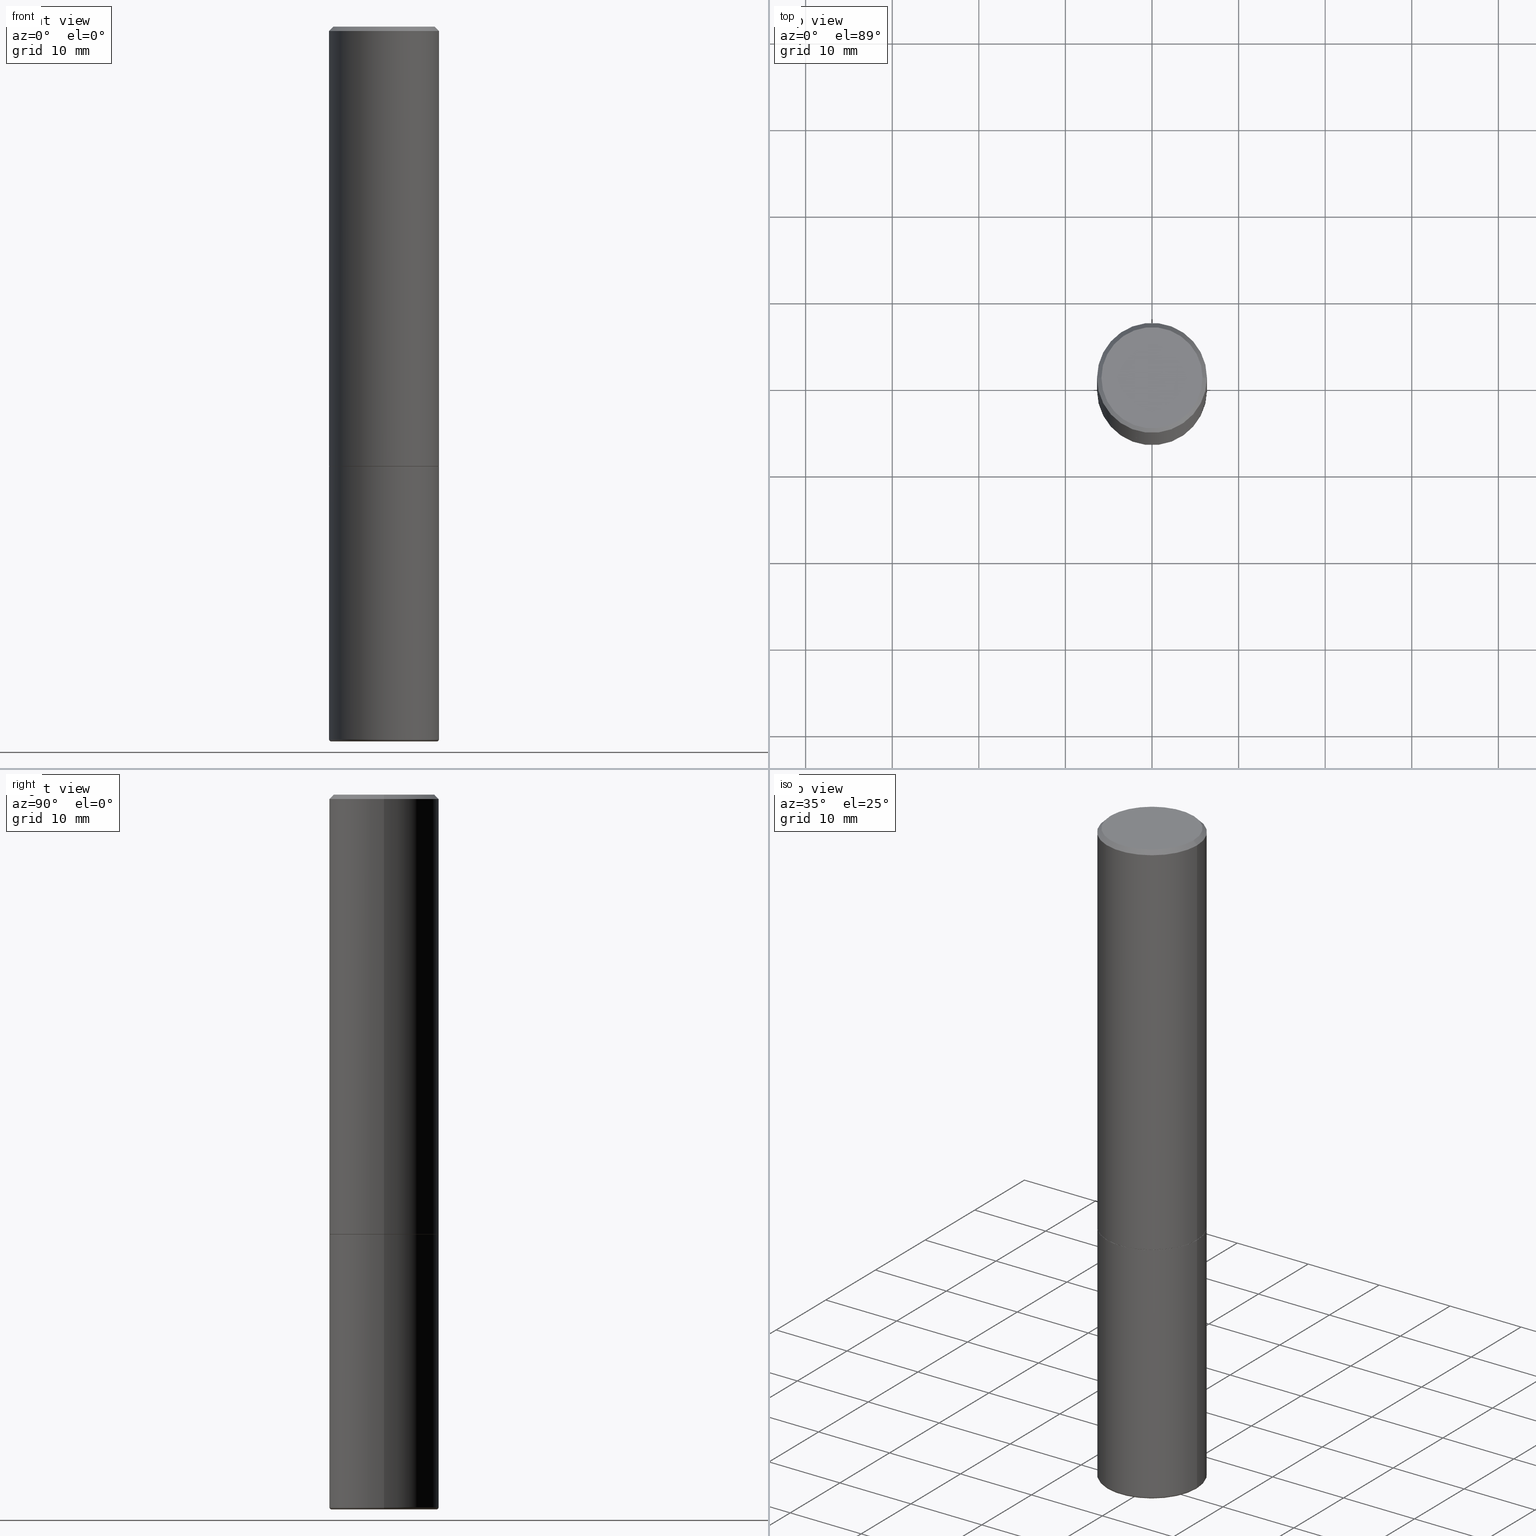
[diagram: canonical four-view strip — front | top / right | iso, engineering-drawing reading convention]
A machine part, canonical four-view strip (front | top / right | iso — engineering-drawing reading convention). The complete STEP part file that produces these views, byte-faithful:
ISO-10303-21;
HEADER;
FILE_DESCRIPTION (( 'STEP AP203' ),
    '1' );
FILE_NAME ('38840.STEP',
    '2024-03-03T16:16:01',
    ( '' ),
    ( '' ),
    'SwSTEP 2.0',
    'SolidWorks 2023',
    '' );
FILE_SCHEMA (( 'CONFIG_CONTROL_DESIGN' ));
ENDSEC;

DATA;
#1 = DIRECTION ( 'NONE',  ( -2.445468806185136597E-29, 3.491481338843145583E-15, 1.000000000000000000 ) ) ;
#2 = VECTOR ( 'NONE', #151, 39.37007874015748143 ) ;
#3 = CIRCLE ( 'NONE', #40, 0.009999999999999790307 ) ;
#4 = DIRECTION ( 'NONE',  ( -2.445468806185136597E-29, 3.491481338843145583E-15, 1.000000000000000000 ) ) ;
#5 = CARTESIAN_POINT ( 'NONE',  ( 7.923318932039842394E-29, -1.131239953785179120E-14, -3.239999999999999769 ) ) ;
#6 = AXIS2_PLACEMENT_3D ( 'NONE', #304, #208, #382 ) ;
#7 = CARTESIAN_POINT ( 'NONE',  ( -0.2500000000000000000, 1.776356839400250465E-15, -1.229733772563726445E-29 ) ) ;
#8 = ADVANCED_FACE ( 'NONE', ( #96 ), #12, .T. ) ;
#9 = PERSON ( 'UNSPECIFIED', 'UNSPECIFIED', 'UNSPECIFIED', ('UNSPECIFIED'), ('UNSPECIFIED'), ('UNSPECIFIED') ) ;
#10 = DIRECTION ( 'NONE',  ( 1.000000000000000000, -6.982962677686268288E-15, 0.000000000000000000 ) ) ;
#11 = CARTESIAN_POINT ( 'NONE',  ( -0.2500000000000000000, -7.371324268368791112E-15, -2.000000000000000444 ) ) ;
#12 = CONICAL_SURFACE ( 'NONE', #249, 0.2489999999999999991, 0.7853981633975336552 ) ;
#13 = AXIS2_PLACEMENT_3D ( 'NONE', #128, #252, #384 ) ;
#14 = DIRECTION ( 'NONE',  ( -2.438088387897960049E-29, 3.491481338843145188E-15, 1.000000000000000000 ) ) ;
#15 = EDGE_CURVE ( 'NONE', #287, #316, #70, .T. ) ;
#16 = APPROVAL_STATUS ( 'not_yet_approved' ) ;
#17 = CARTESIAN_POINT ( 'NONE',  ( 4.890937612370273754E-29, -6.982962677686291954E-15, -2.000000000000000444 ) ) ;
#18 = DIRECTION ( 'NONE',  ( 2.445468806185136597E-29, -3.491481338843145583E-15, -1.000000000000000000 ) ) ;
#19 = CARTESIAN_POINT ( 'NONE',  ( 7.923318932039842394E-29, -1.131239953785179120E-14, -3.239999999999999769 ) ) ;
#20 = LOCAL_TIME ( 11, 16, 1.000000000000000000, #253 ) ;
#21 = ADVANCED_FACE ( 'NONE', ( #74 ), #225, .T. ) ;
#22 =( LENGTH_UNIT ( ) NAMED_UNIT ( * ) SI_UNIT ( $, .METRE. ) );
#23 = ORIENTED_EDGE ( 'NONE', *, *, #204, .F. ) ;
#24 = DIRECTION ( 'NONE',  ( -0.7071067811865467956, 2.468850131082249172E-15, -0.7071067811865482389 ) ) ;
#25 = ORIENTED_EDGE ( 'NONE', *, *, #321, .F. ) ;
#26 = PERSON_AND_ORGANIZATION ( #9, #261 ) ;
#27 = DIRECTION ( 'NONE',  ( 2.438088387897960049E-29, -3.491481338843145188E-15, -1.000000000000000000 ) ) ;
#28 = VECTOR ( 'NONE', #175, 39.37007874015748143 ) ;
#29 = ADVANCED_FACE ( 'NONE', ( #222 ), #127, .T. ) ;
#30 = PERSON_AND_ORGANIZATION ( #9, #261 ) ;
#31 = ADVANCED_BREP_SHAPE_REPRESENTATION ( '38840', ( #246, #393, #207 ), #300 ) ;
#32 = CALENDAR_DATE ( 2024, 3, 3 ) ;
#33 = ORIENTED_EDGE ( 'NONE', *, *, #170, .F. ) ;
#34 = EDGE_CURVE ( 'NONE', #201, #285, #49, .T. ) ;
#35 = CARTESIAN_POINT ( 'NONE',  ( 4.890937612370273754E-29, -6.982962677686291954E-15, -2.000000000000000444 ) ) ;
#36 = SECURITY_CLASSIFICATION ( '', '', #55 ) ;
#37 = EDGE_LOOP ( 'NONE', ( #214, #206, #84, #23 ) ) ;
#38 = FACE_OUTER_BOUND ( 'NONE', #119, .T. ) ;
#39 = CYLINDRICAL_SURFACE ( 'NONE', #78, 0.2500000000000000000 ) ;
#40 = AXIS2_PLACEMENT_3D ( 'NONE', #236, #169, #397 ) ;
#41 = LOCAL_TIME ( 11, 16, 1.000000000000000000, #129 ) ;
#42 = FACE_OUTER_BOUND ( 'NONE', #189, .T. ) ;
#43 = APPROVAL ( #16, 'UNSPECIFIED' ) ;
#44 = PERSON_AND_ORGANIZATION ( #9, #261 ) ;
#45 = PLANE ( 'NONE',  #152 ) ;
#46 = EDGE_LOOP ( 'NONE', ( #273, #130, #123, #202 ) ) ;
#47 = ADVANCED_FACE ( 'NONE', ( #38 ), #165, .F. ) ;
#48 = CARTESIAN_POINT ( 'NONE',  ( 4.890937612370273754E-29, -6.982962677686291954E-15, -2.000000000000000444 ) ) ;
#49 = CIRCLE ( 'NONE', #305, 0.2489999999999999991 ) ;
#50 = DIRECTION ( 'NONE',  ( -2.445468806185136597E-29, 3.491481338843145583E-15, 1.000000000000000000 ) ) ;
#51 = CC_DESIGN_DATE_AND_TIME_ASSIGNMENT ( #385, #94, ( #36 ) ) ;
#52 = CARTESIAN_POINT ( 'NONE',  ( 4.890937612370287172E-31, -6.982962677686310098E-17, -0.02000000000000005593 ) ) ;
#53 = TOROIDAL_SURFACE ( 'NONE', #390, 0.2399999999999999911, 0.009999999999999807654 ) ;
#54 = CC_DESIGN_APPROVAL ( #327, ( #181 ) ) ;
#55 = SECURITY_CLASSIFICATION_LEVEL ( 'unclassified' ) ;
#56 = CARTESIAN_POINT ( 'NONE',  ( -0.2500000000000002220, -1.748293572161901516E-15, -1.999000000000000110 ) ) ;
#57 = ORIENTED_EDGE ( 'NONE', *, *, #321, .T. ) ;
#58 = PERSON_AND_ORGANIZATION_ROLE ( 'creator' ) ;
#59 = DIRECTION ( 'NONE',  ( 1.000000000000000000, -6.982962677686266711E-15, 0.000000000000000000 ) ) ;
#60 = ORIENTED_EDGE ( 'NONE', *, *, #34, .T. ) ;
#61 = ADVANCED_FACE ( 'NONE', ( #324 ), #53, .T. ) ;
#62 = APPROVAL_DATE_TIME ( #159, #327 ) ;
#63 = CIRCLE ( 'NONE', #314, 0.2399999999999999911 ) ;
#64 = UNCERTAINTY_MEASURE_WITH_UNIT (LENGTH_MEASURE( 1.000000000000000082E-05 ), #408, 'distance_accuracy_value', 'NONE');
#65 = COORDINATED_UNIVERSAL_TIME_OFFSET ( 5, 0, .BEHIND. ) ;
#66 = DIRECTION ( 'NONE',  ( 2.438088387897960049E-29, -3.491481338843145188E-15, -1.000000000000000000 ) ) ;
#67 = ORIENTED_EDGE ( 'NONE', *, *, #226, .F. ) ;
#68 = ORIENTED_EDGE ( 'NONE', *, *, #15, .T. ) ;
#69 = DIRECTION ( 'NONE',  ( 1.000000000000000000, -6.982962677686266711E-15, 0.000000000000000000 ) ) ;
#70 = CIRCLE ( 'NONE', #359, 0.2500000000000002220 ) ;
#71 = AXIS2_PLACEMENT_3D ( 'NONE', #115, #85, #239 ) ;
#72 = EDGE_CURVE ( 'NONE', #285, #201, #199, .T. ) ;
#73 = DIMENSIONAL_EXPONENTS ( 1.000000000000000000, 0.000000000000000000, 0.000000000000000000, 0.000000000000000000, 0.000000000000000000, 0.000000000000000000, 0.000000000000000000 ) ;
#74 = FACE_OUTER_BOUND ( 'NONE', #296, .T. ) ;
#75 = CARTESIAN_POINT ( 'NONE',  ( 4.890937612370273754E-29, -6.982962677686291954E-15, -2.000000000000000444 ) ) ;
#76 = EDGE_CURVE ( 'NONE', #287, #391, #167, .T. ) ;
#77 = LINE ( 'NONE', #329, #2 ) ;
#78 = AXIS2_PLACEMENT_3D ( 'NONE', #332, #174, #82 ) ;
#79 = FACE_OUTER_BOUND ( 'NONE', #410, .T. ) ;
#80 = EDGE_LOOP ( 'NONE', ( #242, #368, #380, #112 ) ) ;
#81 = CARTESIAN_POINT ( 'NONE',  ( -1.148236555768741665E-45, 1.639377487418492057E-31, 4.695363739110452099E-17 ) ) ;
#82 = DIRECTION ( 'NONE',  ( 1.000000000000000000, -6.982962677686266711E-15, 4.876176775795935793E-29 ) ) ;
#83 = AXIS2_PLACEMENT_3D ( 'NONE', #341, #248, #177 ) ;
#84 = ORIENTED_EDGE ( 'NONE', *, *, #92, .F. ) ;
#85 = DIRECTION ( 'NONE',  ( 7.105427357601001859E-15, 1.000000000000000000, -3.491481338843145583E-15 ) ) ;
#86 = DIRECTION ( 'NONE',  ( -2.445468806185136597E-29, 3.491481338843145583E-15, 1.000000000000000000 ) ) ;
#87 = ADVANCED_FACE ( 'NONE', ( #42 ), #39, .T. ) ;
#88 = APPROVAL_ROLE ( '' ) ;
#89 = CARTESIAN_POINT ( 'NONE',  ( 7.947773620101692818E-29, -1.134731435124022127E-14, -3.249999999999999556 ) ) ;
#90 = CIRCLE ( 'NONE', #71, 0.009999999999999790307 ) ;
#91 = DIRECTION ( 'NONE',  ( -2.445468806185136597E-29, 3.491481338843145583E-15, 1.000000000000000000 ) ) ;
#92 = EDGE_CURVE ( 'NONE', #135, #173, #168, .T. ) ;
#93 = FACE_OUTER_BOUND ( 'NONE', #46, .T. ) ;
#94 = DATE_TIME_ROLE ( 'classification_date' ) ;
#95 = ORIENTED_EDGE ( 'NONE', *, *, #267, .F. ) ;
#96 = FACE_OUTER_BOUND ( 'NONE', #328, .T. ) ;
#97 = VERTEX_POINT ( 'NONE', #11 ) ;
#98 = CIRCLE ( 'NONE', #160, 0.2500000000000000000 ) ;
#99 = DIRECTION ( 'NONE',  ( 1.000000000000000000, -6.982962677686268288E-15, 0.000000000000000000 ) ) ;
#100 = CARTESIAN_POINT ( 'NONE',  ( 1.606081415867840870E-15, 0.2299999999999999267, -7.795638892383710465E-16 ) ) ;
#101 = PRODUCT_DEFINITION ( 'UNKNOWN', '', #181, #307 ) ;
#102 = AXIS2_PLACEMENT_3D ( 'NONE', #365, #362, #265 ) ;
#103 = CC_DESIGN_APPROVAL ( #166, ( #36 ) ) ;
#104 = EDGE_CURVE ( 'NONE', #316, #192, #141, .T. ) ;
#105 = CYLINDRICAL_SURFACE ( 'NONE', #240, 0.2500000000000001110 ) ;
#106 = CARTESIAN_POINT ( 'NONE',  ( 0.2500000000000000000, -8.728703347107858632E-15, -2.000000000000000444 ) ) ;
#107 = CARTESIAN_POINT ( 'NONE',  ( -0.2299999999999999267, 1.640996229256272519E-15, 4.695363739109317495E-17 ) ) ;
#108 = ORIENTED_EDGE ( 'NONE', *, *, #247, .F. ) ;
#109 = APPROVAL_PERSON_ORGANIZATION ( #113, #43, #88 ) ;
#110 = DIRECTION ( 'NONE',  ( 1.000000000000000000, 0.000000000000000000, 0.000000000000000000 ) ) ;
#111 = CARTESIAN_POINT ( 'NONE',  ( 0.2489999999999999991, -8.721720384430172617E-15, -2.000000000000000444 ) ) ;
#112 = ORIENTED_EDGE ( 'NONE', *, *, #146, .F. ) ;
#113 = PERSON_AND_ORGANIZATION ( #9, #261 ) ;
#114 = DIRECTION ( 'NONE',  ( -2.445468806185136597E-29, 3.491481338843145583E-15, 1.000000000000000000 ) ) ;
#115 = CARTESIAN_POINT ( 'NONE',  ( -0.2399999999999999911, -9.607096972027550816E-15, -3.239999999999999769 ) ) ;
#116 = ORIENTED_EDGE ( 'NONE', *, *, #381, .F. ) ;
#117 = AXIS2_PLACEMENT_3D ( 'NONE', #163, #136, #200 ) ;
#118 = CARTESIAN_POINT ( 'NONE',  ( -1.148236555768741665E-45, 1.639377487418492057E-31, 4.695363739110452099E-17 ) ) ;
#119 = EDGE_LOOP ( 'NONE', ( #335, #409 ) ) ;
#120 = DIRECTION ( 'NONE',  ( 1.000000000000000000, -6.982962677686269077E-15, 4.883557194083114022E-29 ) ) ;
#121 = CC_DESIGN_PERSON_AND_ORGANIZATION_ASSIGNMENT ( #284, #315, ( #36 ) ) ;
#122 = VERTEX_POINT ( 'NONE', #107 ) ;
#123 = ORIENTED_EDGE ( 'NONE', *, *, #281, .F. ) ;
#124 = APPLICATION_CONTEXT ( 'configuration controlled 3d designs of mechanical parts and assemblies' ) ;
#125 = PERSON_AND_ORGANIZATION ( #9, #261 ) ;
#126 = DIRECTION ( 'NONE',  ( 0.7071067811865467956, -7.319954787623254468E-15, -0.7071067811865482389 ) ) ;
#127 = CONICAL_SURFACE ( 'NONE', #256, 0.2489999999999999991, 0.7853981633975336552 ) ;
#128 = CARTESIAN_POINT ( 'NONE',  ( 4.890937612370287172E-31, -6.982962677686310098E-17, -0.02000000000000005593 ) ) ;
#129 = COORDINATED_UNIVERSAL_TIME_OFFSET ( 5, 0, .BEHIND. ) ;
#130 = ORIENTED_EDGE ( 'NONE', *, *, #226, .T. ) ;
#131 = ORIENTED_EDGE ( 'NONE', *, *, #219, .T. ) ;
#132 = DIRECTION ( 'NONE',  ( -2.445468806185136597E-29, 3.491481338843145583E-15, 1.000000000000000000 ) ) ;
#133 = CC_DESIGN_APPROVAL ( #43, ( #101 ) ) ;
#134 = ORIENTED_EDGE ( 'NONE', *, *, #219, .F. ) ;
#135 = VERTEX_POINT ( 'NONE', #140 ) ;
#136 = DIRECTION ( 'NONE',  ( -2.445468806185136597E-29, 3.491481338843145583E-15, 1.000000000000000000 ) ) ;
#137 = ADVANCED_FACE ( 'NONE', ( #203 ), #45, .F. ) ;
#138 = DIRECTION ( 'NONE',  ( 1.000000000000000000, -6.982962677686266711E-15, 0.000000000000000000 ) ) ;
#139 = VECTOR ( 'NONE', #405, 39.37007874015748143 ) ;
#140 = CARTESIAN_POINT ( 'NONE',  ( 0.2499999999999998890, -1.305814020727335945E-14, -3.239999999999999769 ) ) ;
#141 = LINE ( 'NONE', #298, #220 ) ;
#142 = CARTESIAN_POINT ( 'NONE',  ( 0.000000000000000000, 0.000000000000000000, 0.000000000000000000 ) ) ;
#143 = CIRCLE ( 'NONE', #102, 0.2399999999999999911 ) ;
#144 = CARTESIAN_POINT ( 'NONE',  ( 0.000000000000000000, 0.000000000000000000, 0.000000000000000000 ) ) ;
#145 = CARTESIAN_POINT ( 'NONE',  ( 0.2500000000000001110, -1.745740669421567664E-15, 1.219044193948984649E-29 ) ) ;
#146 = EDGE_CURVE ( 'NONE', #316, #287, #360, .T. ) ;
#147 = DIRECTION ( 'NONE',  ( 0.000000000000000000, 0.000000000000000000, 1.000000000000000000 ) ) ;
#148 = DIRECTION ( 'NONE',  ( 1.000000000000000000, -6.982962677686266711E-15, 0.000000000000000000 ) ) ;
#149 = EDGE_CURVE ( 'NONE', #192, #391, #180, .T. ) ;
#150 = MECHANICAL_CONTEXT ( 'NONE', #124, 'mechanical' ) ;
#151 = DIRECTION ( 'NONE',  ( -0.7071067811866078578, 7.493145998870571886E-15, 0.7071067811864871766 ) ) ;
#152 = AXIS2_PLACEMENT_3D ( 'NONE', #17, #14, #238 ) ;
#153 = FACE_OUTER_BOUND ( 'NONE', #317, .T. ) ;
#154 = VERTEX_POINT ( 'NONE', #205 ) ;
#155 = APPROVAL_STATUS ( 'not_yet_approved' ) ;
#156 = FACE_OUTER_BOUND ( 'NONE', #351, .T. ) ;
#157 = DATE_TIME_ROLE ( 'creation_date' ) ;
#158 = ADVANCED_FACE ( 'NONE', ( #79 ), #233, .F. ) ;
#159 = DATE_AND_TIME ( #32, #41 ) ;
#160 = AXIS2_PLACEMENT_3D ( 'NONE', #19, #86, #271 ) ;
#161 =( NAMED_UNIT ( * ) PLANE_ANGLE_UNIT ( ) SI_UNIT ( $, .RADIAN. ) );
#162 = CARTESIAN_POINT ( 'NONE',  ( 4.890937612370273754E-29, -6.982962677686291954E-15, -2.000000000000000444 ) ) ;
#163 = CARTESIAN_POINT ( 'NONE',  ( 4.890937612370273754E-29, -6.982962677686291954E-15, -2.000000000000000444 ) ) ;
#164 = EDGE_CURVE ( 'NONE', #135, #237, #198, .T. ) ;
#165 = PLANE ( 'NONE',  #394 ) ;
#166 = APPROVAL ( #155, 'UNSPECIFIED' ) ;
#167 = LINE ( 'NONE', #145, #364 ) ;
#168 = CIRCLE ( 'NONE', #404, 0.2500000000000000000 ) ;
#169 = DIRECTION ( 'NONE',  ( -6.982962677686266711E-15, -1.000000000000000000, 3.491481338843145583E-15 ) ) ;
#170 = EDGE_CURVE ( 'NONE', #278, #154, #143, .T. ) ;
#171 = PERSON_AND_ORGANIZATION_ROLE ( 'design_owner' ) ;
#172 = CARTESIAN_POINT ( 'NONE',  ( -0.2499999999999998890, -9.536042698451540734E-15, -3.239999999999999769 ) ) ;
#173 = VERTEX_POINT ( 'NONE', #172 ) ;
#174 = DIRECTION ( 'NONE',  ( -2.445468806185136597E-29, 3.491481338843145583E-15, 1.000000000000000000 ) ) ;
#175 = DIRECTION ( 'NONE',  ( -2.445468806185136877E-29, 3.491481338843145188E-15, 1.000000000000000000 ) ) ;
#176 = ADVANCED_FACE ( 'NONE', ( #266 ), #105, .T. ) ;
#177 = DIRECTION ( 'NONE',  ( 1.000000000000000000, -6.982962677686266711E-15, 0.000000000000000000 ) ) ;
#178 = CARTESIAN_POINT ( 'NONE',  ( 0.2500000000000002220, -8.725211865769017202E-15, -1.999000000000000110 ) ) ;
#179 = CIRCLE ( 'NONE', #260, 0.2500000000000000000 ) ;
#180 = CIRCLE ( 'NONE', #373, 0.2500000000000000000 ) ;
#181 = PRODUCT_DEFINITION_FORMATION_WITH_SPECIFIED_SOURCE ( 'ANY', '', #268, .NOT_KNOWN. ) ;
#182 = DIRECTION ( 'NONE',  ( 1.000000000000000000, -6.982962677686268288E-15, 0.000000000000000000 ) ) ;
#183 = DIRECTION ( 'NONE',  ( -2.445468806185136597E-29, 3.491481338843145583E-15, 1.000000000000000000 ) ) ;
#184 = ORIENTED_EDGE ( 'NONE', *, *, #164, .T. ) ;
#185 = CARTESIAN_POINT ( 'NONE',  ( 0.2500000000000000000, -1.784954126219746189E-15, -0.02000000000000005593 ) ) ;
#186 = ORIENTED_EDGE ( 'NONE', *, *, #257, .T. ) ;
#187 = CALENDAR_DATE ( 2024, 3, 3 ) ;
#188 = DATE_AND_TIME ( #187, #221 ) ;
#189 = EDGE_LOOP ( 'NONE', ( #67, #347, #184, #134 ) ) ;
#190 = EDGE_LOOP ( 'NONE', ( #355, #224 ) ) ;
#191 = CC_DESIGN_PERSON_AND_ORGANIZATION_ASSIGNMENT ( #288, #415, ( #181 ) ) ;
#192 = VERTEX_POINT ( 'NONE', #401 ) ;
#193 = VECTOR ( 'NONE', #24, 39.37007874015748143 ) ;
#194 = LOCAL_TIME ( 11, 16, 1.000000000000000000, #279 ) ;
#195 = CARTESIAN_POINT ( 'NONE',  ( 0.000000000000000000, 0.000000000000000000, 0.000000000000000000 ) ) ;
#196 = DIRECTION ( 'NONE',  ( -2.445468806185136597E-29, 3.491481338843145583E-15, 1.000000000000000000 ) ) ;
#197 = LINE ( 'NONE', #7, #289 ) ;
#198 = LINE ( 'NONE', #396, #28 ) ;
#199 = CIRCLE ( 'NONE', #117, 0.2489999999999999991 ) ;
#200 = DIRECTION ( 'NONE',  ( 1.000000000000000000, -6.982962677686266711E-15, 0.000000000000000000 ) ) ;
#201 = VERTEX_POINT ( 'NONE', #111 ) ;
#202 = ORIENTED_EDGE ( 'NONE', *, *, #164, .F. ) ;
#203 = FACE_OUTER_BOUND ( 'NONE', #190, .T. ) ;
#204 = EDGE_CURVE ( 'NONE', #278, #135, #3, .T. ) ;
#205 = CARTESIAN_POINT ( 'NONE',  ( -0.2399999999999999911, -9.589027241933761599E-15, -3.249999999999999556 ) ) ;
#206 = ORIENTED_EDGE ( 'NONE', *, *, #372, .T. ) ;
#207 = AXIS2_PLACEMENT_3D ( 'NONE', #144, #147, #110 ) ;
#208 = DIRECTION ( 'NONE',  ( -2.445468806185136597E-29, 3.491481338843145583E-15, 1.000000000000000000 ) ) ;
#209 = APPROVAL_DATE_TIME ( #350, #166 ) ;
#210 = DIRECTION ( 'NONE',  ( -2.445468806185136597E-29, 3.491481338843145583E-15, 1.000000000000000000 ) ) ;
#211 = AXIS2_PLACEMENT_3D ( 'NONE', #216, #27, #403 ) ;
#212 = AXIS2_PLACEMENT_3D ( 'NONE', #302, #18, #379 ) ;
#213 = CYLINDRICAL_SURFACE ( 'NONE', #6, 0.2500000000000000000 ) ;
#214 = ORIENTED_EDGE ( 'NONE', *, *, #170, .T. ) ;
#215 = DATE_AND_TIME ( #251, #194 ) ;
#216 = CARTESIAN_POINT ( 'NONE',  ( 1.311429661075389283E-28, -3.948559368399508239E-15, -3.249999999999999556 ) ) ;
#217 = ORIENTED_EDGE ( 'NONE', *, *, #414, .F. ) ;
#218 = CALENDAR_DATE ( 2024, 3, 3 ) ;
#219 = EDGE_CURVE ( 'NONE', #97, #237, #179, .T. ) ;
#220 = VECTOR ( 'NONE', #395, 39.37007874015748143 ) ;
#221 = LOCAL_TIME ( 11, 16, 1.000000000000000000, #65 ) ;
#222 = FACE_OUTER_BOUND ( 'NONE', #80, .T. ) ;
#223 = EDGE_LOOP ( 'NONE', ( #258, #245, #386, #95 ) ) ;
#224 = ORIENTED_EDGE ( 'NONE', *, *, #72, .F. ) ;
#225 = CYLINDRICAL_SURFACE ( 'NONE', #352, 0.2500000000000001110 ) ;
#226 = EDGE_CURVE ( 'NONE', #173, #97, #197, .T. ) ;
#227 = AXIS2_PLACEMENT_3D ( 'NONE', #334, #50, #10 ) ;
#228 =( NAMED_UNIT ( * ) SI_UNIT ( $, .STERADIAN. ) SOLID_ANGLE_UNIT ( ) );
#229 = DIRECTION ( 'NONE',  ( -2.445468806185136597E-29, 3.491481338843145583E-15, 1.000000000000000000 ) ) ;
#230 = DIRECTION ( 'NONE',  ( -2.445468806185136597E-29, 3.491481338843145583E-15, 1.000000000000000000 ) ) ;
#231 = CLOSED_SHELL ( 'NONE', ( #354, #61, #158, #87, #263, #338 ) ) ;
#232 = TOROIDAL_SURFACE ( 'NONE', #344, 0.2399999999999999911, 0.009999999999999807654 ) ;
#233 = PLANE ( 'NONE',  #282 ) ;
#234 = ORIENTED_EDGE ( 'NONE', *, *, #15, .F. ) ;
#235 = APPROVAL_PERSON_ORGANIZATION ( #308, #327, #318 ) ;
#236 = CARTESIAN_POINT ( 'NONE',  ( 0.2399999999999999911, -1.298831058049649616E-14, -3.239999999999999769 ) ) ;
#237 = VERTEX_POINT ( 'NONE', #106 ) ;
#238 = DIRECTION ( 'NONE',  ( 1.000000000000000000, -6.982962677686265922E-15, 4.876176775795935793E-29 ) ) ;
#239 = DIRECTION ( 'NONE',  ( -1.000000000000000000, 7.105427357601074434E-15, 0.000000000000000000 ) ) ;
#240 = AXIS2_PLACEMENT_3D ( 'NONE', #142, #229, #326 ) ;
#241 = DIRECTION ( 'NONE',  ( -2.445468806185136597E-29, 3.491481338843145583E-15, 1.000000000000000000 ) ) ;
#242 = ORIENTED_EDGE ( 'NONE', *, *, #257, .F. ) ;
#243 = APPROVAL_ROLE ( '' ) ;
#244 = LINE ( 'NONE', #310, #193 ) ;
#245 = ORIENTED_EDGE ( 'NONE', *, *, #398, .T. ) ;
#246 = MANIFOLD_SOLID_BREP ( 'Body-Move/Copy2[1]', #231 ) ;
#247 = EDGE_CURVE ( 'NONE', #122, #377, #412, .T. ) ;
#248 = DIRECTION ( 'NONE',  ( -2.445468806185136597E-29, 3.491481338843145583E-15, 1.000000000000000000 ) ) ;
#249 = AXIS2_PLACEMENT_3D ( 'NONE', #162, #1, #138 ) ;
#250 = AXIS2_PLACEMENT_3D ( 'NONE', #52, #91, #59 ) ;
#251 = CALENDAR_DATE ( 2024, 3, 3 ) ;
#252 = DIRECTION ( 'NONE',  ( 2.445468806185136597E-29, -3.491481338843145583E-15, -1.000000000000000000 ) ) ;
#253 = COORDINATED_UNIVERSAL_TIME_OFFSET ( 5, 0, .BEHIND. ) ;
#254 = ORIENTED_EDGE ( 'NONE', *, *, #76, .F. ) ;
#255 = ORIENTED_EDGE ( 'NONE', *, *, #104, .T. ) ;
#256 = AXIS2_PLACEMENT_3D ( 'NONE', #356, #196, #69 ) ;
#257 = EDGE_CURVE ( 'NONE', #285, #316, #77, .T. ) ;
#258 = ORIENTED_EDGE ( 'NONE', *, *, #372, .F. ) ;
#259 = CARTESIAN_POINT ( 'NONE',  ( 4.888492143564088712E-29, -6.979471196347448158E-15, -1.999000000000000110 ) ) ;
#260 = AXIS2_PLACEMENT_3D ( 'NONE', #75, #294, #367 ) ;
#261 = ORGANIZATION ( 'UNSPECIFIED', 'UNSPECIFIED', '' ) ;
#262 = DIRECTION ( 'NONE',  ( 1.000000000000000000, -6.982962677686269077E-15, 4.883557194083114022E-29 ) ) ;
#263 = ADVANCED_FACE ( 'NONE', ( #346 ), #232, .T. ) ;
#264 = DIRECTION ( 'NONE',  ( -2.445468806185136877E-29, 3.491481338843145188E-15, 1.000000000000000000 ) ) ;
#265 = DIRECTION ( 'NONE',  ( 1.000000000000000000, -6.982962677686268288E-15, 0.000000000000000000 ) ) ;
#266 = FACE_OUTER_BOUND ( 'NONE', #297, .T. ) ;
#267 = EDGE_CURVE ( 'NONE', #173, #135, #98, .T. ) ;
#268 = PRODUCT ( '38840', '38840', '', ( #150 ) ) ;
#269 = APPLICATION_PROTOCOL_DEFINITION ( 'international standard', 'config_control_design', 1994, #320 ) ;
#270 = CARTESIAN_POINT ( 'NONE',  ( 4.890937612370287172E-31, -6.982962677686310098E-17, -0.02000000000000005593 ) ) ;
#271 = DIRECTION ( 'NONE',  ( 1.000000000000000000, -6.982962677686270655E-15, 0.000000000000000000 ) ) ;
#272 = PLANE ( 'NONE',  #211 ) ;
#273 = ORIENTED_EDGE ( 'NONE', *, *, #92, .T. ) ;
#274 = AXIS2_PLACEMENT_3D ( 'NONE', #81, #230, #363 ) ;
#275 = FACE_OUTER_BOUND ( 'NONE', #276, .T. ) ;
#276 = EDGE_LOOP ( 'NONE', ( #217, #370, #407, #25 ) ) ;
#277 = LENGTH_MEASURE_WITH_UNIT ( LENGTH_MEASURE( 0.02539999999999999897 ), #22 );
#278 = VERTEX_POINT ( 'NONE', #348 ) ;
#279 = COORDINATED_UNIVERSAL_TIME_OFFSET ( 5, 0, .BEHIND. ) ;
#280 = LINE ( 'NONE', #185, #313 ) ;
#281 = EDGE_CURVE ( 'NONE', #237, #97, #336, .T. ) ;
#282 = AXIS2_PLACEMENT_3D ( 'NONE', #48, #301, #295 ) ;
#283 = LOCAL_TIME ( 11, 16, 1.000000000000000000, #378 ) ;
#284 = PERSON_AND_ORGANIZATION ( #9, #261 ) ;
#285 = VERTEX_POINT ( 'NONE', #411 ) ;
#286 = PERSON_AND_ORGANIZATION_ROLE ( 'creator' ) ;
#287 = VERTEX_POINT ( 'NONE', #178 ) ;
#288 = PERSON_AND_ORGANIZATION ( #9, #261 ) ;
#289 = VECTOR ( 'NONE', #264, 39.37007874015748143 ) ;
#290 = DIRECTION ( 'NONE',  ( -2.445468806185136597E-29, 3.491481338843145583E-15, 1.000000000000000000 ) ) ;
#291 = EDGE_CURVE ( 'NONE', #391, #192, #400, .T. ) ;
#292 = CONICAL_SURFACE ( 'NONE', #212, 0.2500000000000000000, 0.7853981633974472798 ) ;
#293 = CARTESIAN_POINT ( 'NONE',  ( 7.923318932039842394E-29, -1.131239953785179120E-14, -3.239999999999999769 ) ) ;
#294 = DIRECTION ( 'NONE',  ( -2.445468806185136597E-29, 3.491481338843145583E-15, 1.000000000000000000 ) ) ;
#295 = DIRECTION ( 'NONE',  ( -1.000000000000000000, 6.982962677686265922E-15, -4.876176775795935793E-29 ) ) ;
#296 = EDGE_LOOP ( 'NONE', ( #68, #255, #330, #254 ) ) ;
#297 = EDGE_LOOP ( 'NONE', ( #319, #416, #349, #357 ) ) ;
#298 = CARTESIAN_POINT ( 'NONE',  ( -0.2500000000000001110, 1.776356839400251254E-15, -1.229733772563727146E-29 ) ) ;
#299 = PRODUCT_RELATED_PRODUCT_CATEGORY ( 'detail', '', ( #268 ) ) ;
#300 =( GEOMETRIC_REPRESENTATION_CONTEXT ( 3 ) GLOBAL_UNCERTAINTY_ASSIGNED_CONTEXT ( ( #64 ) ) GLOBAL_UNIT_ASSIGNED_CONTEXT ( ( #408, #161, #228 ) ) REPRESENTATION_CONTEXT ( 'NONE', 'WORKASPACE' ) );
#301 = DIRECTION ( 'NONE',  ( 2.438088387897960049E-29, -3.491481338843145188E-15, -1.000000000000000000 ) ) ;
#302 = CARTESIAN_POINT ( 'NONE',  ( 4.890937612370287172E-31, -6.982962677686310098E-17, -0.02000000000000005593 ) ) ;
#303 = PRODUCT_DEFINITION_SHAPE ( 'NONE', 'NONE',  #101 ) ;
#304 = CARTESIAN_POINT ( 'NONE',  ( 0.000000000000000000, 0.000000000000000000, 0.000000000000000000 ) ) ;
#305 = AXIS2_PLACEMENT_3D ( 'NONE', #35, #4, #353 ) ;
#306 = AXIS2_PLACEMENT_3D ( 'NONE', #118, #241, #343 ) ;
#307 = DESIGN_CONTEXT ( 'detailed design', #320, 'design' ) ;
#308 = PERSON_AND_ORGANIZATION ( #9, #261 ) ;
#309 = CARTESIAN_POINT ( 'NONE',  ( 0.2489999999999999991, -8.721720384430172617E-15, -2.000000000000000444 ) ) ;
#310 = CARTESIAN_POINT ( 'NONE',  ( -0.2500000000000000000, 1.675911042644703577E-15, -0.02000000000000005593 ) ) ;
#311 = APPROVAL_STATUS ( 'not_yet_approved' ) ;
#312 = CARTESIAN_POINT ( 'NONE',  ( 7.923318932039842394E-29, -1.131239953785179120E-14, -3.239999999999999769 ) ) ;
#313 = VECTOR ( 'NONE', #126, 39.37007874015748143 ) ;
#314 = AXIS2_PLACEMENT_3D ( 'NONE', #89, #210, #182 ) ;
#315 = PERSON_AND_ORGANIZATION_ROLE ( 'classification_officer' ) ;
#316 = VERTEX_POINT ( 'NONE', #56 ) ;
#317 = EDGE_LOOP ( 'NONE', ( #366, #108, #57, #413 ) ) ;
#318 = APPROVAL_ROLE ( '' ) ;
#319 = ORIENTED_EDGE ( 'NONE', *, *, #104, .F. ) ;
#320 = APPLICATION_CONTEXT ( 'configuration controlled 3d designs of mechanical parts and assemblies' ) ;
#321 = EDGE_CURVE ( 'NONE', #122, #192, #244, .T. ) ;
#322 = DIRECTION ( 'NONE',  ( 1.000000000000000000, -6.982962677686267499E-15, 4.876176775795936353E-29 ) ) ;
#323 = CONICAL_SURFACE ( 'NONE', #13, 0.2500000000000000000, 0.7853981633974472798 ) ;
#324 = FACE_OUTER_BOUND ( 'NONE', #37, .T. ) ;
#325 = ORIENTED_EDGE ( 'NONE', *, *, #398, .F. ) ;
#326 = DIRECTION ( 'NONE',  ( 1.000000000000000000, -6.982962677686267499E-15, 4.876176775795936353E-29 ) ) ;
#327 = APPROVAL ( #311, 'UNSPECIFIED' ) ;
#328 = EDGE_LOOP ( 'NONE', ( #60, #186, #234, #116 ) ) ;
#329 = CARTESIAN_POINT ( 'NONE',  ( -0.2489999999999999991, -5.213711265643642498E-15, -2.000000000000000444 ) ) ;
#330 = ORIENTED_EDGE ( 'NONE', *, *, #291, .F. ) ;
#331 = EDGE_CURVE ( 'NONE', #377, #391, #280, .T. ) ;
#332 = CARTESIAN_POINT ( 'NONE',  ( 0.000000000000000000, 0.000000000000000000, 0.000000000000000000 ) ) ;
#333 = CC_DESIGN_DATE_AND_TIME_ASSIGNMENT ( #215, #157, ( #101 ) ) ;
#334 = CARTESIAN_POINT ( 'NONE',  ( 4.888492143564088712E-29, -6.979471196347448158E-15, -1.999000000000000110 ) ) ;
#335 = ORIENTED_EDGE ( 'NONE', *, *, #247, .T. ) ;
#336 = CIRCLE ( 'NONE', #83, 0.2500000000000000000 ) ;
#337 = DIRECTION ( 'NONE',  ( -2.445468806185136877E-29, 3.491481338843145188E-15, 1.000000000000000000 ) ) ;
#338 = ADVANCED_FACE ( 'NONE', ( #156 ), #272, .T. ) ;
#339 = LINE ( 'NONE', #309, #139 ) ;
#340 = CC_DESIGN_PERSON_AND_ORGANIZATION_ASSIGNMENT ( #44, #171, ( #268 ) ) ;
#341 = CARTESIAN_POINT ( 'NONE',  ( 4.890937612370273754E-29, -6.982962677686291954E-15, -2.000000000000000444 ) ) ;
#342 = SHAPE_DEFINITION_REPRESENTATION ( #303, #31 ) ;
#343 = DIRECTION ( 'NONE',  ( 1.000000000000000000, -6.982962677686267499E-15, 4.875813741439101456E-29 ) ) ;
#344 = AXIS2_PLACEMENT_3D ( 'NONE', #312, #183, #120 ) ;
#345 = CIRCLE ( 'NONE', #306, 0.2299999999999999267 ) ;
#346 = FACE_OUTER_BOUND ( 'NONE', #223, .T. ) ;
#347 = ORIENTED_EDGE ( 'NONE', *, *, #267, .T. ) ;
#348 = CARTESIAN_POINT ( 'NONE',  ( 0.2399999999999999911, -1.302322539388492623E-14, -3.249999999999999556 ) ) ;
#349 = ORIENTED_EDGE ( 'NONE', *, *, #76, .T. ) ;
#350 = DATE_AND_TIME ( #218, #283 ) ;
#351 = EDGE_LOOP ( 'NONE', ( #33, #325 ) ) ;
#352 = AXIS2_PLACEMENT_3D ( 'NONE', #195, #389, #322 ) ;
#353 = DIRECTION ( 'NONE',  ( 1.000000000000000000, -6.982962677686266711E-15, 0.000000000000000000 ) ) ;
#354 = ADVANCED_FACE ( 'NONE', ( #93 ), #213, .T. ) ;
#355 = ORIENTED_EDGE ( 'NONE', *, *, #34, .F. ) ;
#356 = CARTESIAN_POINT ( 'NONE',  ( 4.890937612370273754E-29, -6.982962677686291954E-15, -2.000000000000000444 ) ) ;
#357 = ORIENTED_EDGE ( 'NONE', *, *, #149, .F. ) ;
#358 = DIRECTION ( 'NONE',  ( -1.000000000000000000, 6.982962677686265922E-15, -4.876176775795935793E-29 ) ) ;
#359 = AXIS2_PLACEMENT_3D ( 'NONE', #259, #132, #99 ) ;
#360 = CIRCLE ( 'NONE', #227, 0.2500000000000002220 ) ;
#361 = ADVANCED_FACE ( 'NONE', ( #153 ), #323, .T. ) ;
#362 = DIRECTION ( 'NONE',  ( -2.445468806185136597E-29, 3.491481338843145583E-15, 1.000000000000000000 ) ) ;
#363 = DIRECTION ( 'NONE',  ( 1.000000000000000000, -6.982962677686267499E-15, 4.875813741439101456E-29 ) ) ;
#364 = VECTOR ( 'NONE', #337, 39.37007874015748143 ) ;
#365 = CARTESIAN_POINT ( 'NONE',  ( 7.947773620101692818E-29, -1.134731435124022127E-14, -3.249999999999999556 ) ) ;
#366 = ORIENTED_EDGE ( 'NONE', *, *, #331, .F. ) ;
#367 = DIRECTION ( 'NONE',  ( 1.000000000000000000, -6.982962677686266711E-15, 0.000000000000000000 ) ) ;
#368 = ORIENTED_EDGE ( 'NONE', *, *, #72, .T. ) ;
#369 = DIRECTION ( 'NONE',  ( -2.445468806185136597E-29, 3.491481338843145583E-15, 1.000000000000000000 ) ) ;
#370 = ORIENTED_EDGE ( 'NONE', *, *, #331, .T. ) ;
#371 = CLOSED_SHELL ( 'NONE', ( #8, #21, #388, #361, #176, #29, #137, #47 ) ) ;
#372 = EDGE_CURVE ( 'NONE', #154, #173, #90, .T. ) ;
#373 = AXIS2_PLACEMENT_3D ( 'NONE', #270, #369, #148 ) ;
#374 = CARTESIAN_POINT ( 'NONE',  ( 0.2299999999999999267, -1.681434332853598617E-15, 4.695363739111602110E-17 ) ) ;
#375 = APPROVAL_PERSON_ORGANIZATION ( #30, #166, #243 ) ;
#376 = APPLICATION_PROTOCOL_DEFINITION ( 'international standard', 'config_control_design', 1994, #124 ) ;
#377 = VERTEX_POINT ( 'NONE', #374 ) ;
#378 = COORDINATED_UNIVERSAL_TIME_OFFSET ( 5, 0, .BEHIND. ) ;
#379 = DIRECTION ( 'NONE',  ( -1.000000000000000000, 6.982962677686266711E-15, 0.000000000000000000 ) ) ;
#380 = ORIENTED_EDGE ( 'NONE', *, *, #381, .T. ) ;
#381 = EDGE_CURVE ( 'NONE', #201, #287, #339, .T. ) ;
#382 = DIRECTION ( 'NONE',  ( 1.000000000000000000, -6.982962677686266711E-15, 4.876176775795935793E-29 ) ) ;
#383 = CC_DESIGN_SECURITY_CLASSIFICATION ( #36, ( #181 ) ) ;
#384 = DIRECTION ( 'NONE',  ( -1.000000000000000000, 6.982962677686266711E-15, 0.000000000000000000 ) ) ;
#385 = DATE_AND_TIME ( #418, #20 ) ;
#386 = ORIENTED_EDGE ( 'NONE', *, *, #204, .T. ) ;
#387 = APPROVAL_DATE_TIME ( #188, #43 ) ;
#388 = ADVANCED_FACE ( 'NONE', ( #275 ), #292, .T. ) ;
#389 = DIRECTION ( 'NONE',  ( -2.445468806185136597E-29, 3.491481338843145583E-15, 1.000000000000000000 ) ) ;
#390 = AXIS2_PLACEMENT_3D ( 'NONE', #5, #290, #262 ) ;
#391 = VERTEX_POINT ( 'NONE', #406 ) ;
#392 = CC_DESIGN_PERSON_AND_ORGANIZATION_ASSIGNMENT ( #26, #286, ( #181 ) ) ;
#393 = MANIFOLD_SOLID_BREP ( 'Body-Move/Copy2[2]', #371 ) ;
#394 = AXIS2_PLACEMENT_3D ( 'NONE', #100, #66, #358 ) ;
#395 = DIRECTION ( 'NONE',  ( -2.445468806185136877E-29, 3.491481338843145188E-15, 1.000000000000000000 ) ) ;
#396 = CARTESIAN_POINT ( 'NONE',  ( 0.2500000000000000000, -1.745740669421566678E-15, 1.219044193948983948E-29 ) ) ;
#397 = DIRECTION ( 'NONE',  ( 1.000000000000000000, -6.982962677686284854E-15, 0.000000000000000000 ) ) ;
#398 = EDGE_CURVE ( 'NONE', #154, #278, #63, .T. ) ;
#399 = ORIENTED_EDGE ( 'NONE', *, *, #281, .T. ) ;
#400 = CIRCLE ( 'NONE', #250, 0.2500000000000000000 ) ;
#401 = CARTESIAN_POINT ( 'NONE',  ( -0.2500000000000000000, 1.675911042644703577E-15, -0.02000000000000005593 ) ) ;
#402 = DIRECTION ( 'NONE',  ( 1.000000000000000000, -6.982962677686270655E-15, 0.000000000000000000 ) ) ;
#403 = DIRECTION ( 'NONE',  ( -1.000000000000000000, 6.982962677686265922E-15, -4.876176775795935793E-29 ) ) ;
#404 = AXIS2_PLACEMENT_3D ( 'NONE', #293, #114, #402 ) ;
#405 = DIRECTION ( 'NONE',  ( 0.7071067811866078578, -2.468850131082888544E-15, 0.7071067811864871766 ) ) ;
#406 = CARTESIAN_POINT ( 'NONE',  ( 0.2500000000000000000, -1.784954126219746189E-15, -0.02000000000000005593 ) ) ;
#407 = ORIENTED_EDGE ( 'NONE', *, *, #291, .T. ) ;
#408 =( CONVERSION_BASED_UNIT ( 'INCH', #277 ) LENGTH_UNIT ( ) NAMED_UNIT ( #73 ) );
#409 = ORIENTED_EDGE ( 'NONE', *, *, #414, .T. ) ;
#410 = EDGE_LOOP ( 'NONE', ( #399, #131 ) ) ;
#411 = CARTESIAN_POINT ( 'NONE',  ( -0.2489999999999999991, -5.208412811295419307E-15, -2.000000000000000444 ) ) ;
#412 = CIRCLE ( 'NONE', #274, 0.2299999999999999267 ) ;
#413 = ORIENTED_EDGE ( 'NONE', *, *, #149, .T. ) ;
#414 = EDGE_CURVE ( 'NONE', #377, #122, #345, .T. ) ;
#415 = PERSON_AND_ORGANIZATION_ROLE ( 'design_supplier' ) ;
#416 = ORIENTED_EDGE ( 'NONE', *, *, #146, .T. ) ;
#417 = CC_DESIGN_PERSON_AND_ORGANIZATION_ASSIGNMENT ( #125, #58, ( #101 ) ) ;
#418 = CALENDAR_DATE ( 2024, 3, 3 ) ;
ENDSEC;
END-ISO-10303-21;
